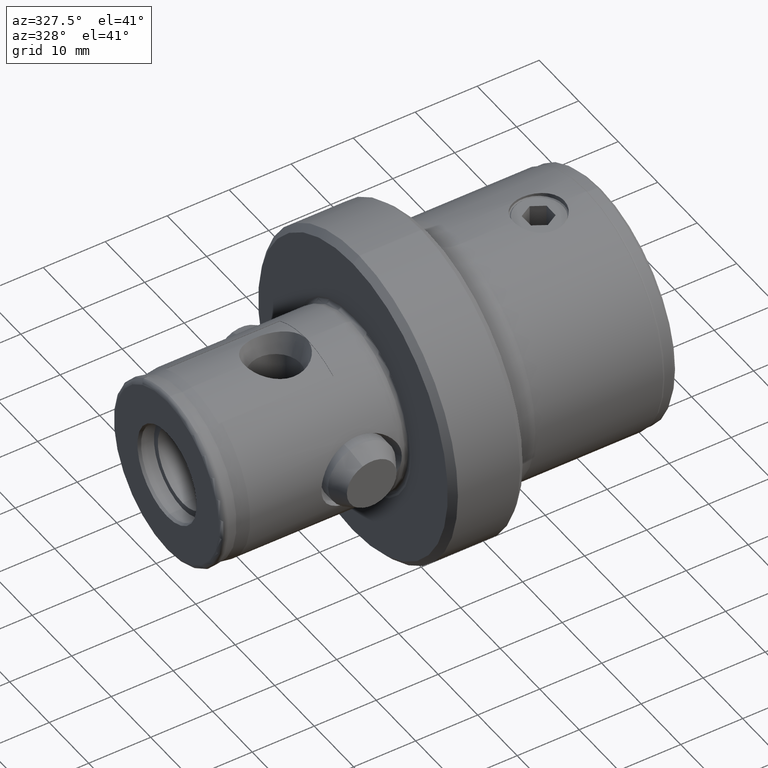
[diagram: clean part render]
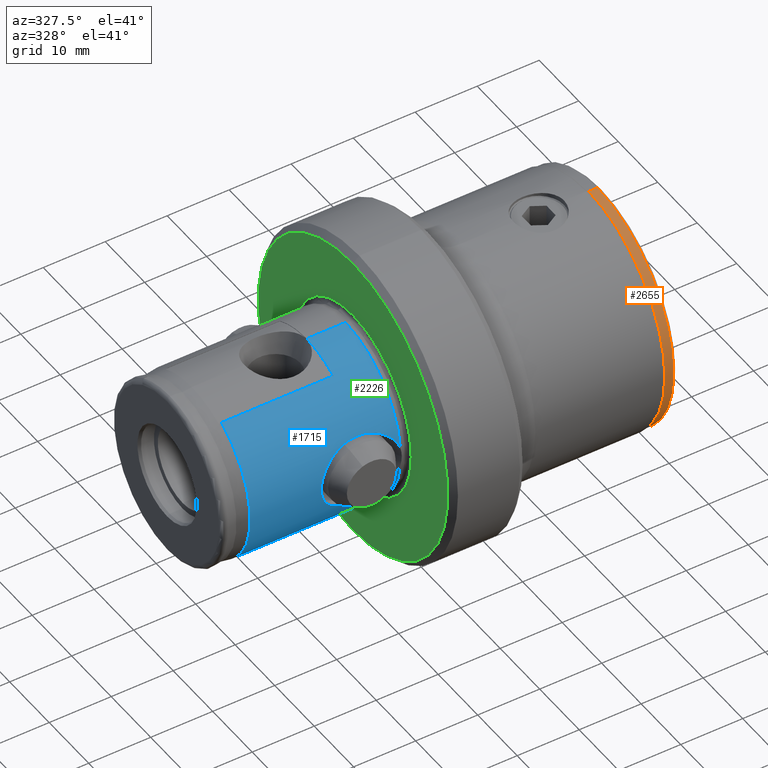
[diagram: same view with three faces highlighted in distinct colors, each labeled with its STEP entity id]
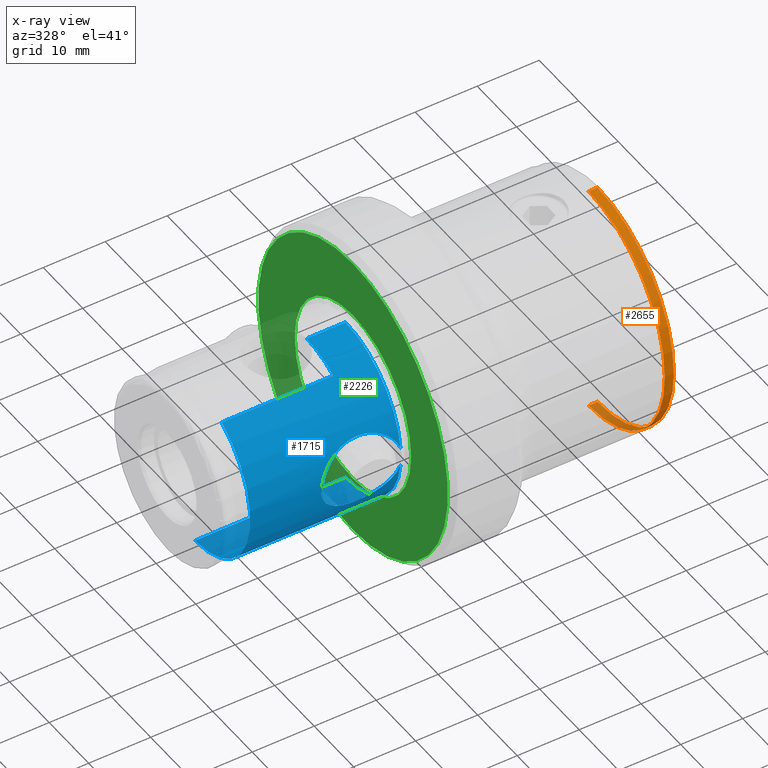
[diagram: x-ray of the same camera — body ghosted, the three highlighted faces saturated]
A machine part, auxiliary view with three faces highlighted in distinct colors.
The next image is the same camera in x-ray (body ghosted, the three faces saturated) — at least one of them is partly hidden behind the body in this view.
Their STEP definitions:

[orange] entity #2655 — the highlighted cylindrical surface (partial cylindrical patch) has radius 19.3 mm, axis along (-1, -0, -0).
#384 = DIRECTION ( 'NONE',  ( 0.0000000000000000000, 0.0000000000000000000, 1.000000000000000000 ) ) ;
#484 = CARTESIAN_POINT ( 'NONE',  ( 0.0000000000000000000, 2.363568322354391800E-015, -19.30000000000000100 ) ) ;
#562 = VERTEX_POINT ( 'NONE', #1759 ) ;
#708 = CIRCLE ( 'NONE', #3281, 19.30000000000000100 ) ;
#869 = AXIS2_PLACEMENT_3D ( 'NONE', #5496, #2928, #384 ) ;
#1243 = ORIENTED_EDGE ( 'NONE', *, *, #3951, .T. ) ;
#1459 = CARTESIAN_POINT ( 'NONE',  ( 0.0000000000000000000, 0.0000000000000000000, 0.0000000000000000000 ) ) ;
#1555 = CARTESIAN_POINT ( 'NONE',  ( 67.99999999999998600, 0.0000000000000000000, 0.0000000000000000000 ) ) ;
#1680 = VECTOR ( 'NONE', #3893, 1000.000000000000000 ) ;
#1759 = CARTESIAN_POINT ( 'NONE',  ( 69.45000000000001700, 0.0000000000000000000, 19.30000000000000100 ) ) ;
#1883 = DIRECTION ( 'NONE',  ( -1.000000000000000000, -0.0000000000000000000, -0.0000000000000000000 ) ) ;
#1901 = ORIENTED_EDGE ( 'NONE', *, *, #4575, .F. ) ;
#1996 = DIRECTION ( 'NONE',  ( 0.0000000000000000000, 0.0000000000000000000, 1.000000000000000000 ) ) ;
#2007 = AXIS2_PLACEMENT_3D ( 'NONE', #1459, #1883, #4023 ) ;
#2239 = ORIENTED_EDGE ( 'NONE', *, *, #4122, .T. ) ;
#2410 = DIRECTION ( 'NONE',  ( -1.000000000000000000, -0.0000000000000000000, -0.0000000000000000000 ) ) ;
#2655 = ADVANCED_FACE ( 'NONE', ( #5460 ), #5322, .T. ) ;
#2695 = CARTESIAN_POINT ( 'NONE',  ( 67.99999999999998600, 0.0000000000000000000, 19.30000000000000100 ) ) ;
#2829 = CARTESIAN_POINT ( 'NONE',  ( 67.99999999999998600, 2.370742137212629800E-015, -19.30000000000000100 ) ) ;
#2928 = DIRECTION ( 'NONE',  ( -1.000000000000000000, -0.0000000000000000000, -0.0000000000000000000 ) ) ;
#2950 = LINE ( 'NONE', #484, #1680 ) ;
#3227 = VERTEX_POINT ( 'NONE', #2695 ) ;
#3281 = AXIS2_PLACEMENT_3D ( 'NONE', #1555, #4564, #1996 ) ;
#3316 = VERTEX_POINT ( 'NONE', #3591 ) ;
#3443 = VERTEX_POINT ( 'NONE', #2829 ) ;
#3523 = EDGE_LOOP ( 'NONE', ( #1901, #2239, #1243, #5020 ) ) ;
#3591 = CARTESIAN_POINT ( 'NONE',  ( 69.45000000000001700, 2.363568322354391800E-015, -19.30000000000000100 ) ) ;
#3893 = DIRECTION ( 'NONE',  ( -1.000000000000000000, -0.0000000000000000000, -0.0000000000000000000 ) ) ;
#3951 = EDGE_CURVE ( 'NONE', #562, #3227, #3976, .T. ) ;
#3957 = EDGE_CURVE ( 'NONE', #3443, #3227, #708, .T. ) ;
#3976 = LINE ( 'NONE', #5408, #5105 ) ;
#4023 = DIRECTION ( 'NONE',  ( 0.0000000000000000000, 0.0000000000000000000, 1.000000000000000000 ) ) ;
#4122 = EDGE_CURVE ( 'NONE', #3316, #562, #5451, .T. ) ;
#4564 = DIRECTION ( 'NONE',  ( -1.000000000000000000, -0.0000000000000000000, -0.0000000000000000000 ) ) ;
#4575 = EDGE_CURVE ( 'NONE', #3316, #3443, #2950, .T. ) ;
#5020 = ORIENTED_EDGE ( 'NONE', *, *, #3957, .F. ) ;
#5105 = VECTOR ( 'NONE', #2410, 1000.000000000000000 ) ;
#5322 = CYLINDRICAL_SURFACE ( 'NONE', #2007, 19.30000000000000100 ) ;
#5408 = CARTESIAN_POINT ( 'NONE',  ( 0.0000000000000000000, 0.0000000000000000000, 19.30000000000000100 ) ) ;
#5451 = CIRCLE ( 'NONE', #869, 19.30000000000000100 ) ;
#5460 = FACE_OUTER_BOUND ( 'NONE', #3523, .T. ) ;
#5496 = CARTESIAN_POINT ( 'NONE',  ( 69.45000000000001700, 0.0000000000000000000, 0.0000000000000000000 ) ) ;

[blue] entity #1715 — the highlighted cylindrical surface (partial cylindrical patch) has radius 14 mm, axis along (-1, -0, -0).
#85 = CARTESIAN_POINT ( 'NONE',  ( 28.78776358969250600, 1.714505518806294800E-015, -14.00000000000000200 ) ) ;
#92 = CARTESIAN_POINT ( 'NONE',  ( 17.24582690687180200, -13.57601544049510000, 3.433031071806822400 ) ) ;
#121 = CARTESIAN_POINT ( 'NONE',  ( 23.61643292333150200, -12.78240600845511200, 5.711123234284126000 ) ) ;
#138 = CARTESIAN_POINT ( 'NONE',  ( 28.78776358969250600, -13.91954716158114300, 1.498735072158647000 ) ) ;
#249 = CARTESIAN_POINT ( 'NONE',  ( 0.0000000000000000000, 0.0000000000000000000, 13.99999999999999800 ) ) ;
#300 = CARTESIAN_POINT ( 'NONE',  ( 25.72616488563355500, -13.06412976714574400, -5.036568026676940600 ) ) ;
#323 = CARTESIAN_POINT ( 'NONE',  ( 19.92177200070944200, -12.94930256059091000, -5.323690372627117600 ) ) ;
#326 = CARTESIAN_POINT ( 'NONE',  ( 28.78776358969250600, 0.0000000000000000000, 0.0000000000000000000 ) ) ;
#335 = CARTESIAN_POINT ( 'NONE',  ( 16.39055575404333400, -13.85663667330279800, -2.005667064782731500 ) ) ;
#403 = EDGE_CURVE ( 'NONE', #1166, #1709, #433, .T. ) ;
#433 = CIRCLE ( 'NONE', #5344, 13.99999999999999600 ) ;
#490 = VERTEX_POINT ( 'NONE', #1469 ) ;
#523 = CARTESIAN_POINT ( 'NONE',  ( 18.02698004933528300, -13.35243590167889100, 4.216815590391924200 ) ) ;
#539 = CARTESIAN_POINT ( 'NONE',  ( 24.70020868398449200, -12.89368304656681000, 5.456499349938835200 ) ) ;
#556 = EDGE_CURVE ( 'NONE', #490, #2836, #5194, .T. ) ;
#595 = CARTESIAN_POINT ( 'NONE',  ( 22.54191015702186400, -0.1037325836829058600, 14.00000000000000200 ) ) ;
#714 = CARTESIAN_POINT ( 'NONE',  ( 28.67858171175529900, -13.88065470199070900, -1.859949963006062700 ) ) ;
#726 = CARTESIAN_POINT ( 'NONE',  ( 24.69530137306610100, -12.89302472608762600, -5.458043742836710300 ) ) ;
#739 = CARTESIAN_POINT ( 'NONE',  ( 18.92571984846019400, -13.13583189027140800, -4.847320573132342300 ) ) ;
#741 = DIRECTION ( 'NONE',  ( 0.0000000000000000000, 0.0000000000000000000, 1.000000000000000000 ) ) ;
#750 = CARTESIAN_POINT ( 'NONE',  ( 16.20302101378631600, -13.92274820060111800, -1.479458578300494100 ) ) ;
#788 = CARTESIAN_POINT ( 'NONE',  ( 0.0000000000000000000, 0.0000000000000000000, 0.0000000000000000000 ) ) ;
#922 = CARTESIAN_POINT ( 'NONE',  ( 15.98963702891816400, -13.99999999999999800, -1.757463767696631200E-023 ) ) ;
#937 = CARTESIAN_POINT ( 'NONE',  ( 18.93337475104639000, -13.13416600605190800, 4.851843500964759100 ) ) ;
#955 = CARTESIAN_POINT ( 'NONE',  ( 25.73352748240368700, -13.06559255495315600, 5.032760908917642200 ) ) ;
#1012 = EDGE_CURVE ( 'NONE', #3250, #5447, #2568, .T. ) ;
#1035 = LINE ( 'NONE', #4767, #2167 ) ;
#1058 = AXIS2_PLACEMENT_3D ( 'NONE', #4760, #2197, #5196 ) ;
#1090 = EDGE_CURVE ( 'NONE', #1709, #5447, #1035, .T. ) ;
#1102 = DIRECTION ( 'NONE',  ( -1.000000000000000000, -0.0000000000000000000, -0.0000000000000000000 ) ) ;
#1151 = CARTESIAN_POINT ( 'NONE',  ( 23.60642382044186100, -12.78170883719177400, -5.712676256186725300 ) ) ;
#1166 = VERTEX_POINT ( 'NONE', #4037 ) ;
#1169 = LINE ( 'NONE', #249, #4172 ) ;
#1173 = CARTESIAN_POINT ( 'NONE',  ( 18.31281176488379400, -13.28030141749698400, -4.432614894523341700 ) ) ;
#1188 = CARTESIAN_POINT ( 'NONE',  ( 16.03023507483243600, -13.98500105179415900, -0.7455379877244212600 ) ) ;
#1226 = EDGE_CURVE ( 'NONE', #3751, #2030, #4135, .T. ) ;
#1372 = CARTESIAN_POINT ( 'NONE',  ( 19.93291889528333600, -12.94754537224803700, 5.327942370568955300 ) ) ;
#1392 = CARTESIAN_POINT ( 'NONE',  ( 26.66911857877240900, -13.27419729076528100, 4.456151241964375800 ) ) ;
#1418 = CARTESIAN_POINT ( 'NONE',  ( 22.50000000000000000, -0.6195287105817886000, 13.98628557468940100 ) ) ;
#1469 = CARTESIAN_POINT ( 'NONE',  ( 28.78776358969250600, -13.91954716158114300, 1.498735072158647000 ) ) ;
#1476 = VERTEX_POINT ( 'NONE', #5220 ) ;
#1480 = VERTEX_POINT ( 'NONE', #85 ) ;
#1519 = ORIENTED_EDGE ( 'NONE', *, *, #1226, .T. ) ;
#1528 = CARTESIAN_POINT ( 'NONE',  ( 4.500000000000000000, 0.0000000000000000000, 0.0000000000000000000 ) ) ;
#1551 = CARTESIAN_POINT ( 'NONE',  ( 28.78776358969250600, -13.91954716158114100, -1.498735072158642800 ) ) ;
#1560 = CIRCLE ( 'NONE', #3564, 14.00000000000000000 ) ;
#1573 = CARTESIAN_POINT ( 'NONE',  ( 22.67307999285634100, -12.74762062289945100, -5.787769228367137600 ) ) ;
#1590 = CARTESIAN_POINT ( 'NONE',  ( 17.88558180556415100, -13.39182402022375500, -4.083652221519706400 ) ) ;
#1602 = CARTESIAN_POINT ( 'NONE',  ( 15.98963702891816400, -13.99999999999999800, -1.757463767696631200E-023 ) ) ;
#1709 = VERTEX_POINT ( 'NONE', #2917 ) ;
#1715 = ADVANCED_FACE ( 'NONE', ( #2952 ), #5098, .T. ) ;
#1722 = CARTESIAN_POINT ( 'NONE',  ( 22.50000000000000000, 0.0000000000000000000, 0.0000000000000000000 ) ) ;
#1768 = DIRECTION ( 'NONE',  ( 1.000000000000000000, 0.0000000000000000000, 0.0000000000000000000 ) ) ;
#1782 = CARTESIAN_POINT ( 'NONE',  ( 16.03174610136270300, -13.98445140195676800, 0.7541055431258297800 ) ) ;
#1800 = CARTESIAN_POINT ( 'NONE',  ( 21.00819551991297700, -12.81275130927831500, 5.643080229816551000 ) ) ;
#1818 = CARTESIAN_POINT ( 'NONE',  ( 27.49819377513686200, -13.49925884545093200, 3.722068007535805000 ) ) ;
#1831 = ORIENTED_EDGE ( 'NONE', *, *, #1012, .T. ) ;
#1848 = VECTOR ( 'NONE', #3731, 1000.000000000000000 ) ;
#1858 = CARTESIAN_POINT ( 'NONE',  ( 22.51396394253156800, -0.5167509676191371900, 13.99083816030865900 ) ) ;
#1868 = ORIENTED_EDGE ( 'NONE', *, *, #403, .F. ) ;
#1872 = CARTESIAN_POINT ( 'NONE',  ( 28.78776358969250600, -13.91954716158114100, -1.498735072158642800 ) ) ;
#1977 = B_SPLINE_CURVE_WITH_KNOTS ( 'NONE', 3,
 ( #922, #3474, #1782, #4778, #2219, #5212, #2649, #92, #3073, #523, #3494, #937, #3933, #1372, #4364, #1800, #4807, #2232, #5229, #2666, #121, #3082, #539, #3517, #955, #3947, #1392, #4387, #1818, #4822, #2256, #5243, #2684, #138 ),
 .UNSPECIFIED., .F., .F.,
 ( 4, 2, 2, 2, 2, 2, 2, 2, 2, 2, 2, 2, 2, 2, 2, 2, 4 ),
 ( 0.01793056335953181400, 0.01904944151071684100, 0.02016831966190186700, 0.02128719781308689400, 0.02240607596427192000, 0.02352495411545694700, 0.02464383226664197000, 0.02576271041782699600, 0.02688158856901202300, 0.02800046672019704900, 0.02911934487138207600, 0.03023822302256710300, 0.03135710117375212900, 0.03247597932493715600, 0.03359485747612218200, 0.03471373562730720200, 0.03583261377849223500 ),
 .UNSPECIFIED. ) ;
#1994 = CARTESIAN_POINT ( 'NONE',  ( 27.96804516892229500, -13.64229507308996300, -3.158056006447734500 ) ) ;
#2012 = CARTESIAN_POINT ( 'NONE',  ( 22.10748164720265100, -12.75147671523961900, -5.779262498121035200 ) ) ;
#2022 = CARTESIAN_POINT ( 'NONE',  ( 17.24567989522337900, -13.57605884453394300, -3.432881917397997600 ) ) ;
#2030 = VERTEX_POINT ( 'NONE', #2601 ) ;
#2077 = AXIS2_PLACEMENT_3D ( 'NONE', #1722, #4723, #2147 ) ;
#2101 = EDGE_CURVE ( 'NONE', #3250, #1476, #2618, .T. ) ;
#2147 = DIRECTION ( 'NONE',  ( 0.0000000000000000000, 0.0000000000000000000, -1.000000000000000000 ) ) ;
#2167 = VECTOR ( 'NONE', #1768, 1000.000000000000000 ) ;
#2197 = DIRECTION ( 'NONE',  ( -1.000000000000000000, -0.0000000000000000000, -0.0000000000000000000 ) ) ;
#2219 = CARTESIAN_POINT ( 'NONE',  ( 16.31341097125858400, -13.88316896836803200, 1.837429050422867600 ) ) ;
#2232 = CARTESIAN_POINT ( 'NONE',  ( 22.11693614346995000, -12.74809747374961000, 5.786863442173825000 ) ) ;
#2256 = CARTESIAN_POINT ( 'NONE',  ( 28.17341781859008200, -13.70895165603512000, 2.859133022163992300 ) ) ;
#2324 = ORIENTED_EDGE ( 'NONE', *, *, #4000, .T. ) ;
#2421 = CARTESIAN_POINT ( 'NONE',  ( 27.23553986962265600, -13.42351449441476100, -3.983787918958714400 ) ) ;
#2445 = CARTESIAN_POINT ( 'NONE',  ( 21.36457090649043900, -12.78353567164304400, -5.708156723297122400 ) ) ;
#2461 = CARTESIAN_POINT ( 'NONE',  ( 16.81773420977091500, -13.71241010411574700, -2.827810579898034000 ) ) ;
#2568 = CIRCLE ( 'NONE', #2077, 13.99999999999999800 ) ;
#2601 = CARTESIAN_POINT ( 'NONE',  ( 15.98963702891816400, -13.99999999999999800, -1.757463767696631200E-023 ) ) ;
#2618 = B_SPLINE_CURVE_WITH_KNOTS ( 'NONE', 3,
 ( #3472, #1858, #3145, #595, #3575 ),
 .UNSPECIFIED., .F., .F.,
 ( 4, 1, 4 ),
 ( 0.01089935162120170100, 0.01120844053823601100, 0.01151752945527032000 ),
 .UNSPECIFIED. ) ;
#2649 = CARTESIAN_POINT ( 'NONE',  ( 16.81232807096133500, -13.71322397941291400, 2.835733709466962300 ) ) ;
#2666 = CARTESIAN_POINT ( 'NONE',  ( 23.24353029997696800, -12.76055469985374200, 5.759225338574718300 ) ) ;
#2684 = CARTESIAN_POINT ( 'NONE',  ( 28.67862063226459000, -13.88066856614439400, 1.859821199260781400 ) ) ;
#2836 = VERTEX_POINT ( 'NONE', #4737 ) ;
#2860 = CARTESIAN_POINT ( 'NONE',  ( 26.36324187213544000, -13.20015561227366500, -4.668446837217690200 ) ) ;
#2875 = CARTESIAN_POINT ( 'NONE',  ( 20.27592551116858400, -12.89660489962265500, -5.448719129742235300 ) ) ;
#2879 = DIRECTION ( 'NONE',  ( 0.0000000000000000000, 0.0000000000000000000, 1.000000000000000000 ) ) ;
#2883 = CARTESIAN_POINT ( 'NONE',  ( 16.54448789943112500, -13.80367201016332700, -2.342588164084215700 ) ) ;
#2917 = CARTESIAN_POINT ( 'NONE',  ( 4.500000000000000000, -6.750000000000000000, 12.26529657203607500 ) ) ;
#2952 = FACE_OUTER_BOUND ( 'NONE', #3626, .T. ) ;
#3073 = CARTESIAN_POINT ( 'NONE',  ( 17.49323929402424900, -13.50129937157963800, 3.712680098096142100 ) ) ;
#3082 = CARTESIAN_POINT ( 'NONE',  ( 24.34383225699432200, -12.84894926327856800, 5.559796290500441900 ) ) ;
#3145 = CARTESIAN_POINT ( 'NONE',  ( 22.53489710086665100, -0.3107178230748488000, 13.99769451029315300 ) ) ;
#3250 = VERTEX_POINT ( 'NONE', #1418 ) ;
#3277 = CARTESIAN_POINT ( 'NONE',  ( 25.39273110345817100, -13.00150898266030100, -5.194332705943021500 ) ) ;
#3284 = CARTESIAN_POINT ( 'NONE',  ( 19.24826720446869600, -13.06874034875459300, -5.023359601517965300 ) ) ;
#3288 = DIRECTION ( 'NONE',  ( -1.000000000000000000, -0.0000000000000000000, -0.0000000000000000000 ) ) ;
#3309 = CARTESIAN_POINT ( 'NONE',  ( 16.32210730808853000, -13.88061028271799700, -1.833132106955795100 ) ) ;
#3337 = DIRECTION ( 'NONE',  ( -1.000000000000000000, -0.0000000000000000000, -0.0000000000000000000 ) ) ;
#3375 = EDGE_CURVE ( 'NONE', #2836, #1476, #1169, .T. ) ;
#3472 = CARTESIAN_POINT ( 'NONE',  ( 22.50000000000000000, -0.6195287105817886000, 13.98628557468940100 ) ) ;
#3474 = CARTESIAN_POINT ( 'NONE',  ( 15.98963702891816400, -14.00000000000000200, 0.3738735733435913900 ) ) ;
#3494 = CARTESIAN_POINT ( 'NONE',  ( 18.31508328962877000, -13.27766057651041400, 4.444145772515172500 ) ) ;
#3517 = CARTESIAN_POINT ( 'NONE',  ( 25.39807177656089700, -13.00244627574932600, 5.191997545016729300 ) ) ;
#3564 = AXIS2_PLACEMENT_3D ( 'NONE', #326, #3288, #741 ) ;
#3575 = CARTESIAN_POINT ( 'NONE',  ( 22.54191015702185300, -7.143214382866784000E-023, 13.99999999999999800 ) ) ;
#3626 = EDGE_LOOP ( 'NONE', ( #4393, #2324, #1519, #3906, #4750, #3950, #4851, #1831, #5205, #1868 ) ) ;
#3646 = EDGE_CURVE ( 'NONE', #2030, #490, #1977, .T. ) ;
#3655 = DIRECTION ( 'NONE',  ( -1.000000000000000000, -0.0000000000000000000, -0.0000000000000000000 ) ) ;
#3710 = CARTESIAN_POINT ( 'NONE',  ( 24.33446129539326800, -12.84787926493462400, -5.562261158954040500 ) ) ;
#3728 = CARTESIAN_POINT ( 'NONE',  ( 18.46368010515128700, -13.24323099227689200, -4.541858863091477800 ) ) ;
#3731 = DIRECTION ( 'NONE',  ( -1.000000000000000000, -0.0000000000000000000, -0.0000000000000000000 ) ) ;
#3741 = CARTESIAN_POINT ( 'NONE',  ( 16.15214132069423100, -13.94100033113916100, -1.297123777684192000 ) ) ;
#3751 = VERTEX_POINT ( 'NONE', #1872 ) ;
#3906 = ORIENTED_EDGE ( 'NONE', *, *, #3646, .T. ) ;
#3933 = CARTESIAN_POINT ( 'NONE',  ( 19.25912007513265300, -13.06660320297214800, 5.028894690347335900 ) ) ;
#3947 = CARTESIAN_POINT ( 'NONE',  ( 26.36817055122543300, -13.20131933952865000, 4.665142963957682000 ) ) ;
#3950 = ORIENTED_EDGE ( 'NONE', *, *, #3375, .T. ) ;
#4000 = EDGE_CURVE ( 'NONE', #1480, #3751, #1560, .T. ) ;
#4037 = CARTESIAN_POINT ( 'NONE',  ( 4.500000000000000000, 1.714505518806294200E-015, -13.99999999999999600 ) ) ;
#4093 = DIRECTION ( 'NONE',  ( 0.0000000000000000000, 0.0000000000000000000, 1.000000000000000000 ) ) ;
#4135 = B_SPLINE_CURVE_WITH_KNOTS ( 'NONE', 3,
 ( #1551, #714, #5405, #4563, #1994, #5000, #2421, #5419, #2860, #300, #3277, #726, #3710, #1151, #4145, #1573, #4578, #2012, #5016, #2445, #5433, #2875, #323, #3284, #739, #3728, #1173, #4156, #1590, #4602, #2022, #5024, #2461, #5456, #2883, #335, #3309, #750, #3741, #1188, #4177, #1602 ),
 .UNSPECIFIED., .F., .F.,
 ( 4, 2, 2, 2, 2, 2, 2, 2, 2, 2, 2, 2, 2, 2, 2, 2, 2, 2, 2, 2, 4 ),
 ( 6.843897831545310600E-007, 0.001121301825392439400, 0.002241919261001724300, 0.003362536696611009100, 0.004483154132220294200, 0.005603771567829579800, 0.006724389003438863700, 0.007845006439048150100, 0.008405315156852791200, 0.008965623874657434000, 0.01008624131026673000, 0.01120685874587602400, 0.01232747618148532000, 0.01288778489928997200, 0.01344809361709462300, 0.01456871105270392100, 0.01512901977050857100, 0.01568932848831321900, 0.01624963720611786700, 0.01680994592392251500, 0.01793056335953181400 ),
 .UNSPECIFIED. ) ;
#4145 = CARTESIAN_POINT ( 'NONE',  ( 23.23665938135368600, -12.76025958315330300, -5.759877786495531300 ) ) ;
#4156 = CARTESIAN_POINT ( 'NONE',  ( 18.02406804803570100, -13.35453352380111400, -4.203678734679273000 ) ) ;
#4172 = VECTOR ( 'NONE', #3655, 1000.000000000000000 ) ;
#4177 = CARTESIAN_POINT ( 'NONE',  ( 15.98963702891816400, -14.00000000000000500, -0.3744547559165754000 ) ) ;
#4206 = AXIS2_PLACEMENT_3D ( 'NONE', #788, #3337, #2879 ) ;
#4364 = CARTESIAN_POINT ( 'NONE',  ( 20.28248820038431400, -12.89567505605339700, 5.450918770468139700 ) ) ;
#4387 = CARTESIAN_POINT ( 'NONE',  ( 27.23660462800075900, -13.42380198228978300, 3.982855501483050900 ) ) ;
#4393 = ORIENTED_EDGE ( 'NONE', *, *, #5073, .F. ) ;
#4563 = CARTESIAN_POINT ( 'NONE',  ( 28.17967549515105600, -13.71101365560243400, -2.848949292794524800 ) ) ;
#4578 = CARTESIAN_POINT ( 'NONE',  ( 22.48318722097985800, -12.74669798271206200, -5.789794813204575300 ) ) ;
#4602 = CARTESIAN_POINT ( 'NONE',  ( 17.48769738854795400, -13.50294647696557600, -3.706629285491398000 ) ) ;
#4723 = DIRECTION ( 'NONE',  ( 1.000000000000000000, 0.0000000000000000000, 0.0000000000000000000 ) ) ;
#4737 = CARTESIAN_POINT ( 'NONE',  ( 28.78776358969250600, 0.0000000000000000000, 14.00000000000000200 ) ) ;
#4750 = ORIENTED_EDGE ( 'NONE', *, *, #556, .T. ) ;
#4760 = CARTESIAN_POINT ( 'NONE',  ( 28.78776358969250600, 0.0000000000000000000, 0.0000000000000000000 ) ) ;
#4767 = CARTESIAN_POINT ( 'NONE',  ( 0.0000000000000000000, -6.749999999999998200, 12.26529657203607600 ) ) ;
#4778 = CARTESIAN_POINT ( 'NONE',  ( 16.19353831609543800, -13.92606286196141800, 1.482676413976630000 ) ) ;
#4807 = CARTESIAN_POINT ( 'NONE',  ( 21.37638459608695400, -12.78272164803647600, 5.709974165213775900 ) ) ;
#4822 = CARTESIAN_POINT ( 'NONE',  ( 27.96564097867175400, -13.64156355512716500, 3.160937107984449500 ) ) ;
#4851 = ORIENTED_EDGE ( 'NONE', *, *, #2101, .F. ) ;
#5000 = CARTESIAN_POINT ( 'NONE',  ( 27.49572507592921200, -13.49850768911284000, -3.725026545955997900 ) ) ;
#5016 = CARTESIAN_POINT ( 'NONE',  ( 21.92085548766969800, -12.75714015813809800, -5.766787177197813600 ) ) ;
#5024 = CARTESIAN_POINT ( 'NONE',  ( 16.92034452702931800, -13.67903680355067500, -2.984537674308663600 ) ) ;
#5026 = CARTESIAN_POINT ( 'NONE',  ( 0.0000000000000000000, 1.714505518806294400E-015, -13.99999999999999800 ) ) ;
#5073 = EDGE_CURVE ( 'NONE', #1480, #1166, #5267, .T. ) ;
#5098 = CYLINDRICAL_SURFACE ( 'NONE', #4206, 13.99999999999999800 ) ;
#5194 = CIRCLE ( 'NONE', #1058, 14.00000000000000000 ) ;
#5196 = DIRECTION ( 'NONE',  ( 0.0000000000000000000, 0.0000000000000000000, 1.000000000000000000 ) ) ;
#5205 = ORIENTED_EDGE ( 'NONE', *, *, #1090, .F. ) ;
#5212 = CARTESIAN_POINT ( 'NONE',  ( 16.62473116609290700, -13.77607371028811100, 2.517601884393912300 ) ) ;
#5220 = CARTESIAN_POINT ( 'NONE',  ( 22.54191015702185300, -7.143214382866784000E-023, 13.99999999999999800 ) ) ;
#5229 = CARTESIAN_POINT ( 'NONE',  ( 22.49031633599613800, -12.74338311842894300, 5.797121651766572000 ) ) ;
#5243 = CARTESIAN_POINT ( 'NONE',  ( 28.53126870727455300, -13.82896208316422300, 2.206763432799964300 ) ) ;
#5267 = LINE ( 'NONE', #5026, #1848 ) ;
#5344 = AXIS2_PLACEMENT_3D ( 'NONE', #1528, #1102, #4093 ) ;
#5405 = CARTESIAN_POINT ( 'NONE',  ( 28.53360899498369100, -13.82978443435105500, -2.201242839037103000 ) ) ;
#5419 = CARTESIAN_POINT ( 'NONE',  ( 26.66928991056464000, -13.27424925791566700, -4.455963891654642200 ) ) ;
#5433 = CARTESIAN_POINT ( 'NONE',  ( 20.99848398684153100, -12.81368506571142900, -5.640960301983510800 ) ) ;
#5445 = CARTESIAN_POINT ( 'NONE',  ( 22.50000000000000000, -6.750000000000000000, 12.26529657203607800 ) ) ;
#5447 = VERTEX_POINT ( 'NONE', #5445 ) ;
#5456 = CARTESIAN_POINT ( 'NONE',  ( 16.62997386311074900, -13.77467929017909800, -2.506973073638805600 ) ) ;

[green] entity #2226 — the highlighted planar face has unit normal (1, 0, 0).
#153 = CARTESIAN_POINT ( 'NONE',  ( 30.00000000000000000, 0.0000000000000000000, 0.0000000000000000000 ) ) ;
#238 = DIRECTION ( 'NONE',  ( 0.0000000000000000000, 0.0000000000000000000, 1.000000000000000000 ) ) ;
#239 = FACE_BOUND ( 'NONE', #1084, .T. ) ;
#573 = CARTESIAN_POINT ( 'NONE',  ( 30.00000000000000000, 3.000384657911015500E-015, 24.00000000000000400 ) ) ;
#579 = DIRECTION ( 'NONE',  ( 0.0000000000000000000, 0.0000000000000000000, 1.000000000000000000 ) ) ;
#803 = CARTESIAN_POINT ( 'NONE',  ( 30.00000000000000000, 1.805010754026669900E-015, -14.73903132955059900 ) ) ;
#881 = VERTEX_POINT ( 'NONE', #803 ) ;
#1067 = AXIS2_PLACEMENT_3D ( 'NONE', #2469, #5466, #2892 ) ;
#1084 = EDGE_LOOP ( 'NONE', ( #5052, #4811 ) ) ;
#1094 = AXIS2_PLACEMENT_3D ( 'NONE', #153, #3125, #579 ) ;
#1580 = VERTEX_POINT ( 'NONE', #2636 ) ;
#1817 = AXIS2_PLACEMENT_3D ( 'NONE', #5346, #2791, #238 ) ;
#1843 = CARTESIAN_POINT ( 'NONE',  ( 30.00000000000000000, 14.73903132955059900, 0.0000000000000000000 ) ) ;
#1859 = DIRECTION ( 'NONE',  ( 1.000000000000000000, 0.0000000000000000000, 0.0000000000000000000 ) ) ;
#1956 = AXIS2_PLACEMENT_3D ( 'NONE', #1843, #1859, #4863 ) ;
#1983 = CARTESIAN_POINT ( 'NONE',  ( 30.00000000000000000, 0.0000000000000000000, 0.0000000000000000000 ) ) ;
#2208 = EDGE_CURVE ( 'NONE', #3008, #1580, #2765, .T. ) ;
#2226 = ADVANCED_FACE ( 'NONE', ( #239, #4773 ), #4430, .F. ) ;
#2253 = CIRCLE ( 'NONE', #3255, 24.00000000000000400 ) ;
#2411 = DIRECTION ( 'NONE',  ( 0.0000000000000000000, 0.0000000000000000000, 1.000000000000000000 ) ) ;
#2439 = ORIENTED_EDGE ( 'NONE', *, *, #2208, .T. ) ;
#2469 = CARTESIAN_POINT ( 'NONE',  ( 30.00000000000000000, 0.0000000000000000000, 0.0000000000000000000 ) ) ;
#2636 = CARTESIAN_POINT ( 'NONE',  ( 30.00000000000000000, 0.0000000000000000000, -24.00000000000000400 ) ) ;
#2764 = CIRCLE ( 'NONE', #1817, 14.73903132955059900 ) ;
#2765 = CIRCLE ( 'NONE', #1094, 24.00000000000000400 ) ;
#2791 = DIRECTION ( 'NONE',  ( -1.000000000000000000, -0.0000000000000000000, -0.0000000000000000000 ) ) ;
#2892 = DIRECTION ( 'NONE',  ( 0.0000000000000000000, 0.0000000000000000000, 1.000000000000000000 ) ) ;
#2907 = CIRCLE ( 'NONE', #1067, 14.73903132955059900 ) ;
#3008 = VERTEX_POINT ( 'NONE', #573 ) ;
#3125 = DIRECTION ( 'NONE',  ( -1.000000000000000000, -0.0000000000000000000, -0.0000000000000000000 ) ) ;
#3255 = AXIS2_PLACEMENT_3D ( 'NONE', #1983, #4978, #2411 ) ;
#3907 = CARTESIAN_POINT ( 'NONE',  ( 30.00000000000000000, 0.0000000000000000000, 14.73903132955059900 ) ) ;
#4430 = PLANE ( 'NONE',  #1956 ) ;
#4608 = EDGE_LOOP ( 'NONE', ( #5160, #2439 ) ) ;
#4773 = FACE_OUTER_BOUND ( 'NONE', #4608, .T. ) ;
#4811 = ORIENTED_EDGE ( 'NONE', *, *, #5476, .F. ) ;
#4863 = DIRECTION ( 'NONE',  ( 0.0000000000000000000, 0.0000000000000000000, -1.000000000000000000 ) ) ;
#4867 = EDGE_CURVE ( 'NONE', #5224, #881, #2764, .T. ) ;
#4973 = EDGE_CURVE ( 'NONE', #1580, #3008, #2253, .T. ) ;
#4978 = DIRECTION ( 'NONE',  ( -1.000000000000000000, -0.0000000000000000000, -0.0000000000000000000 ) ) ;
#5052 = ORIENTED_EDGE ( 'NONE', *, *, #4867, .F. ) ;
#5160 = ORIENTED_EDGE ( 'NONE', *, *, #4973, .T. ) ;
#5224 = VERTEX_POINT ( 'NONE', #3907 ) ;
#5346 = CARTESIAN_POINT ( 'NONE',  ( 30.00000000000000000, 0.0000000000000000000, 0.0000000000000000000 ) ) ;
#5466 = DIRECTION ( 'NONE',  ( -1.000000000000000000, -0.0000000000000000000, -0.0000000000000000000 ) ) ;
#5476 = EDGE_CURVE ( 'NONE', #881, #5224, #2907, .T. ) ;